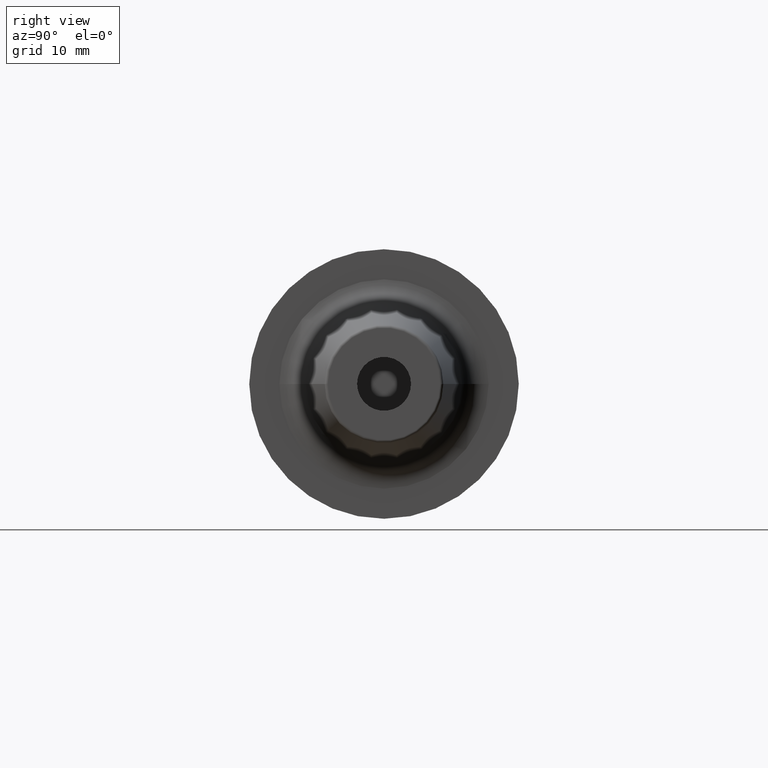
[diagram: clean part render]
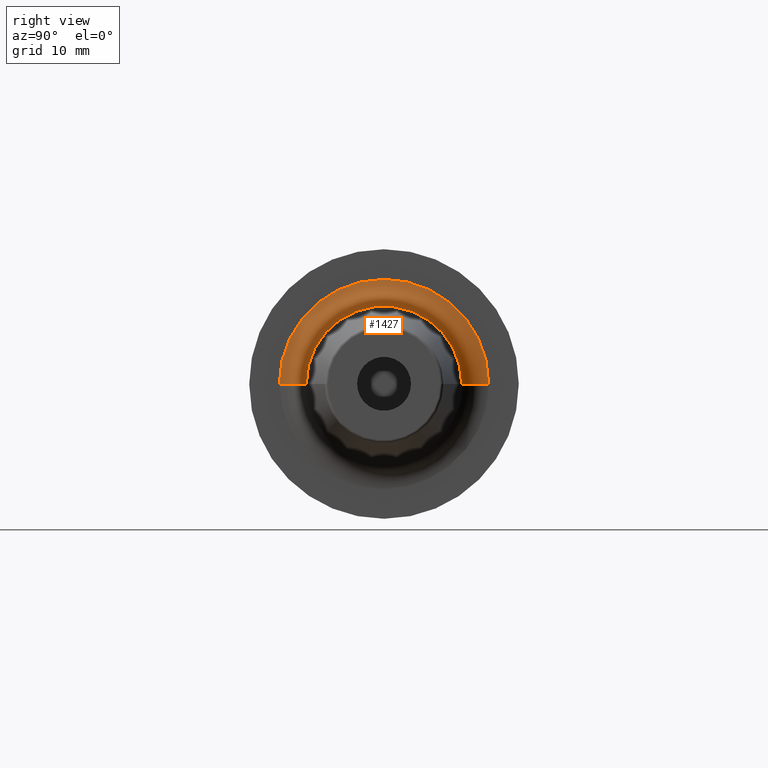
[diagram: same view with one face highlighted and labeled with its STEP entity id]
A machine part, right view. The second image highlights one B-rep face of the part: STEP entity #1427.
In plain terms, the highlighted toroidal blend (fillet) surface has major radius 9.7093 mm and minor (blend) radius 2.5 mm.
Its self-contained STEP definition (entity closure, byte-faithful):
#469=CARTESIAN_POINT('',(9.95E0,0.E0,0.E0));
#470=DIRECTION('',(1.E0,0.E0,0.E0));
#471=DIRECTION('',(0.E0,1.E0,0.E0));
#472=AXIS2_PLACEMENT_3D('',#469,#470,#471);
#474=CARTESIAN_POINT('',(1.245E1,-9.709304080658E0,3.256284131226E-12));
#475=DIRECTION('',(0.E0,-3.353758243341E-13,-1.E0));
#476=DIRECTION('',(-1.E0,1.072919530998E-13,0.E0));
#477=AXIS2_PLACEMENT_3D('',#474,#475,#476);
#479=CARTESIAN_POINT('',(1.245E1,9.709304080658E0,-3.262098924317E-12));
#480=DIRECTION('',(0.E0,3.359743039333E-13,1.E0));
#481=DIRECTION('',(-1.E0,-1.080024958355E-13,0.E0));
#482=AXIS2_PLACEMENT_3D('',#479,#480,#481);
#489=CARTESIAN_POINT('',(1.231916010939E1,0.E0,0.E0));
#490=DIRECTION('',(1.E0,0.E0,0.E0));
#491=DIRECTION('',(0.E0,1.E0,0.E0));
#492=AXIS2_PLACEMENT_3D('',#489,#490,#491);
#668=CARTESIAN_POINT('',(9.95E0,-9.709304080658E0,0.E0));
#669=CARTESIAN_POINT('',(9.95E0,9.709304080658E0,0.E0));
#670=VERTEX_POINT('',#668);
#671=VERTEX_POINT('',#669);
#672=CARTESIAN_POINT('',(1.231916010939E1,-7.212730243771E0,0.E0));
#673=CARTESIAN_POINT('',(1.231916010939E1,7.212730243771E0,0.E0));
#674=VERTEX_POINT('',#672);
#675=VERTEX_POINT('',#673);
#1415=CARTESIAN_POINT('',(1.245E1,0.E0,0.E0));
#1416=DIRECTION('',(1.E0,0.E0,0.E0));
#1417=DIRECTION('',(0.E0,9.999282574312E-1,-1.197831334822E-2));
#1418=AXIS2_PLACEMENT_3D('',#1415,#1416,#1417);
#1419=TOROIDAL_SURFACE('',#1418,9.709304080658E0,2.5E0);
#1420=ORIENTED_EDGE('',*,*,#1395,.F.);
#1421=ORIENTED_EDGE('',*,*,#1410,.T.);
#1423=ORIENTED_EDGE('',*,*,#1422,.T.);
#1424=ORIENTED_EDGE('',*,*,#1406,.F.);
#1425=EDGE_LOOP('',(#1420,#1421,#1423,#1424));
#1426=FACE_OUTER_BOUND('',#1425,.F.);
#1427=ADVANCED_FACE('',(#1426),#1419,.F.);
#473=CIRCLE('',#472,9.709304080658E0);
#478=CIRCLE('',#477,2.5E0);
#483=CIRCLE('',#482,2.5E0);
#493=CIRCLE('',#492,7.212730243771E0);
#1395=EDGE_CURVE('',#671,#670,#473,.T.);
#1406=EDGE_CURVE('',#670,#674,#478,.T.);
#1410=EDGE_CURVE('',#671,#675,#483,.T.);
#1422=EDGE_CURVE('',#675,#674,#493,.T.);